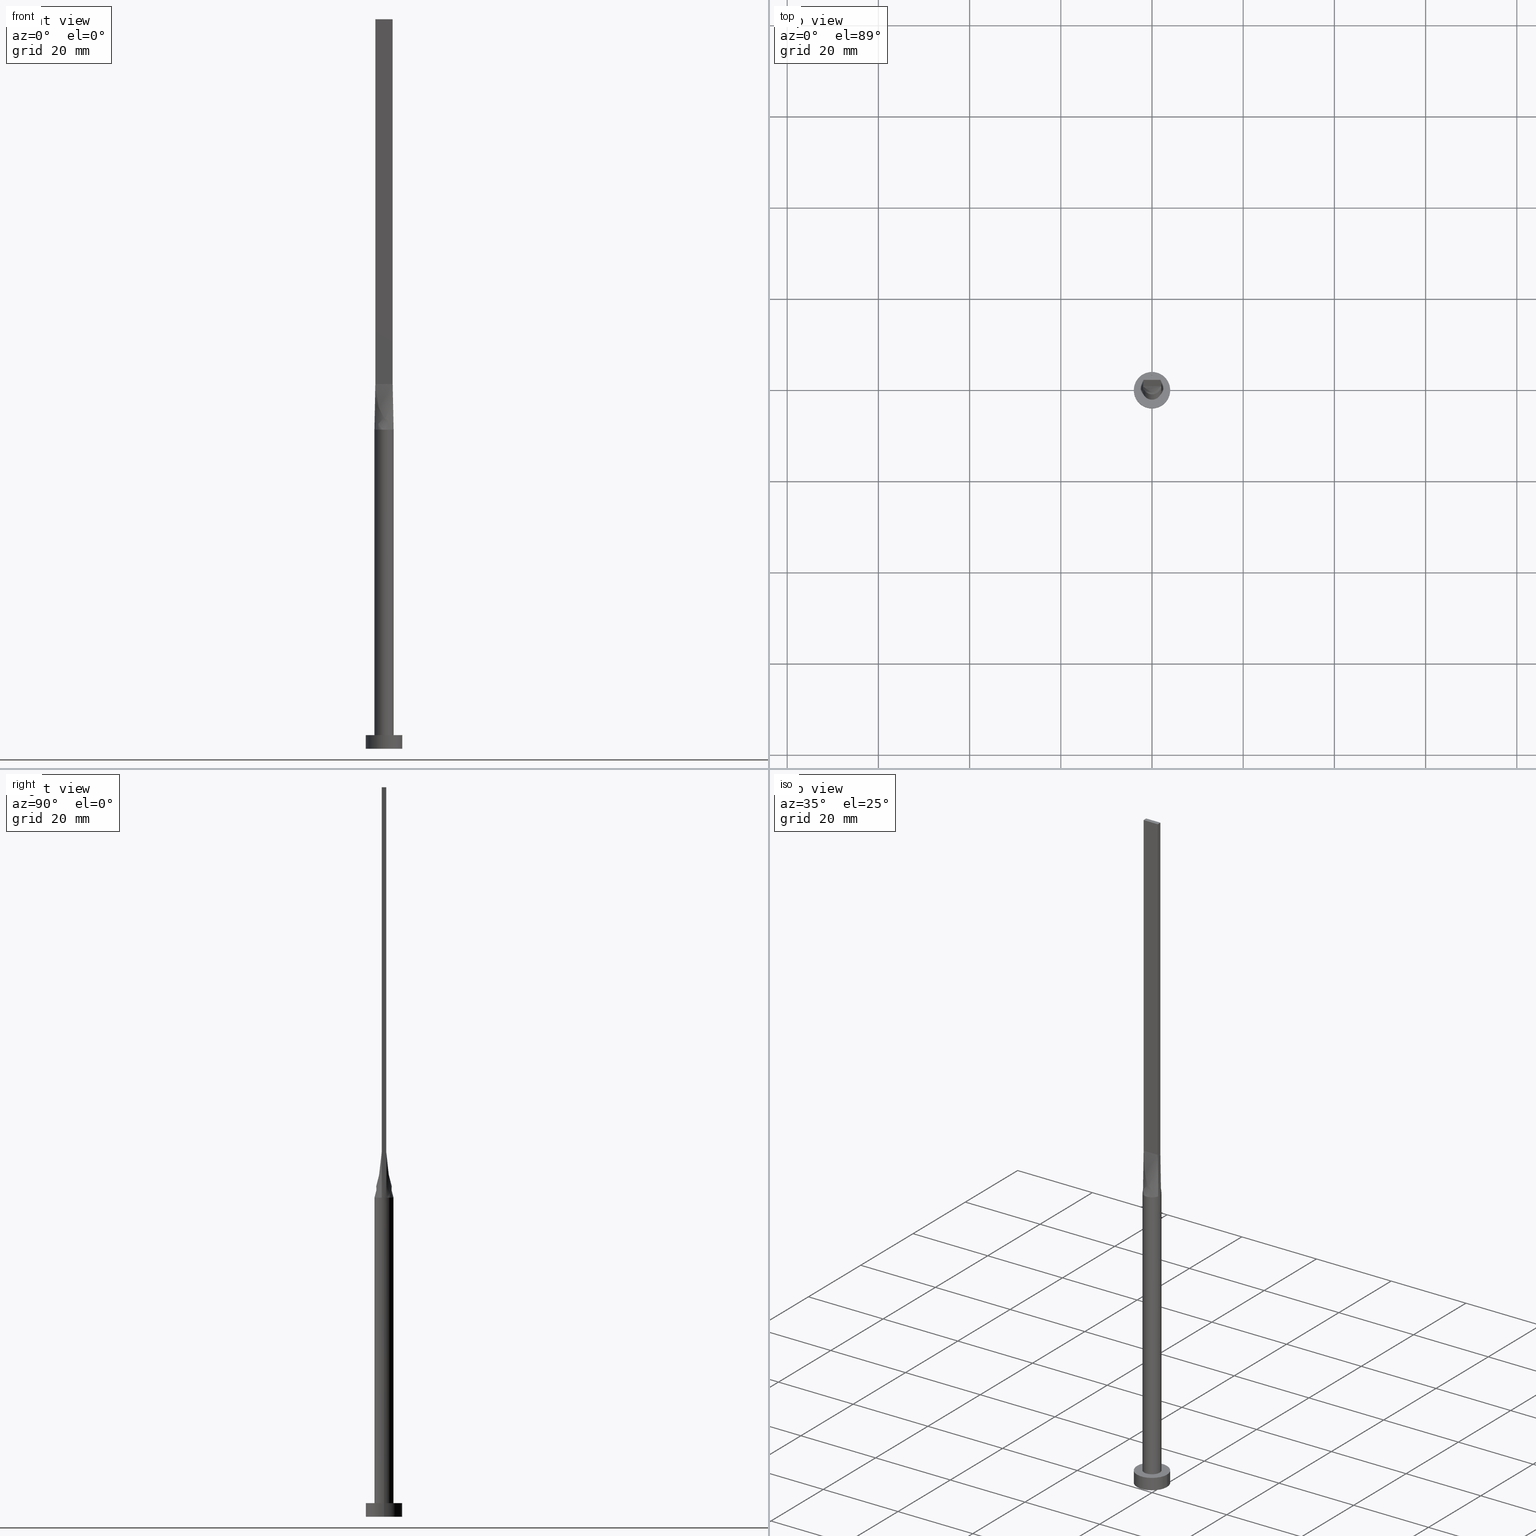
[diagram: canonical four-view strip — front | top / right | iso, engineering-drawing reading convention]
A machine part, canonical four-view strip (front | top / right | iso — engineering-drawing reading convention). The complete STEP part file that produces these views, byte-faithful:
ISO-10303-21;
HEADER;
FILE_DESCRIPTION (( 'STEP AP203' ),
    '1' );
FILE_NAME ('98dd.STEP',
    '2023-02-13T11:25:01',
    ( '' ),
    ( '' ),
    'SwSTEP 2.0',
    'SolidWorks 2019',
    '' );
FILE_SCHEMA (( 'CONFIG_CONTROL_DESIGN' ));
ENDSEC;

DATA;
#1 = CARTESIAN_POINT ( 'NONE',  ( 1.899999999999999023, -0.4999999999999997780, 160.0000000000000000 ) ) ;
#2 = EDGE_LOOP ( 'NONE', ( #580, #82, #55, #319, #169, #505 ) ) ;
#3 = SHAPE_DEFINITION_REPRESENTATION ( #445, #129 ) ;
#4 = CC_DESIGN_PERSON_AND_ORGANIZATION_ASSIGNMENT ( #349, #407, ( #8 ) ) ;
#5 = LINE ( 'NONE', #10, #37 ) ;
#6 = ORIENTED_EDGE ( 'NONE', *, *, #476, .T. ) ;
#7 = CALENDAR_DATE ( 2023, 13, 2 ) ;
#8 = SECURITY_CLASSIFICATION ( '', '', #535 ) ;
#9 = ORGANIZATION ( 'NEUR�EN�', 'NEUR�EN�', '' ) ;
#10 = CARTESIAN_POINT ( 'NONE',  ( 1.899999999999999023, -0.4999999999999997780, 160.0000000000000000 ) ) ;
#11 = CARTESIAN_POINT ( 'NONE',  ( -1.899999999999999911, -0.4999999999999995559, 80.00000000000000000 ) ) ;
#12 = APPROVAL_ROLE ( '' ) ;
#13 = CARTESIAN_POINT ( 'NONE',  ( 1.583604922800829984, -1.399063468093436846, 69.99999999999998579 ) ) ;
#14 = CYLINDRICAL_SURFACE ( 'NONE', #33, 2.100000000000000089 ) ;
#15 = DIRECTION ( 'NONE',  ( -0.000000000000000000, -0.000000000000000000, -1.000000000000000000 ) ) ;
#16 = CARTESIAN_POINT ( 'NONE',  ( -1.899999999999999467, 0.3333333333333335369, 79.99999999999998579 ) ) ;
#17 = ADVANCED_FACE ( 'NONE', ( #548 ), #558, .F. ) ;
#18 = DIRECTION ( 'NONE',  ( 0.000000000000000000, 0.000000000000000000, 1.000000000000000000 ) ) ;
#19 = DIRECTION ( 'NONE',  ( -0.000000000000000000, -0.000000000000000000, -1.000000000000000000 ) ) ;
#20 = PLANE ( 'NONE',  #113 ) ;
#21 = DIRECTION ( 'NONE',  ( 0.000000000000000000, 0.000000000000000000, 1.000000000000000000 ) ) ;
#22 = CARTESIAN_POINT ( 'NONE',  ( -2.031019593402089818, 0.5344793603115657321, 70.00000000000000000 ) ) ;
#23 = ORIENTED_EDGE ( 'NONE', *, *, #364, .F. ) ;
#24 = LINE ( 'NONE', #469, #293 ) ;
#25 = VECTOR ( 'NONE', #262, 1000.000000000000000 ) ;
#26 = DIRECTION ( 'NONE',  ( 0.000000000000000000, -0.000000000000000000, -1.000000000000000000 ) ) ;
#27 = CARTESIAN_POINT ( 'NONE',  ( -0.5389299406762299016, 2.046272663899431965, 70.00000000000001421 ) ) ;
#28 = ORIENTED_EDGE ( 'NONE', *, *, #549, .F. ) ;
#29 = DIRECTION ( 'NONE',  ( 1.000000000000000000, -2.168404344971009361E-16, 0.000000000000000000 ) ) ;
#30 = ORIENTED_EDGE ( 'NONE', *, *, #350, .F. ) ;
#31 = CARTESIAN_POINT ( 'NONE',  ( -1.719043754744862484, -1.223020672007444798, 69.99999999999998579 ) ) ;
#32 = ADVANCED_FACE ( 'NONE', ( #413 ), #14, .T. ) ;
#33 = AXIS2_PLACEMENT_3D ( 'NONE', #176, #142, #419 ) ;
#34 = VERTEX_POINT ( 'NONE', #460 ) ;
#35 = DIRECTION ( 'NONE',  ( -1.000000000000000000, -0.000000000000000000, -0.000000000000000000 ) ) ;
#36 = VECTOR ( 'NONE', #579, 1000.000000000000114 ) ;
#37 = VECTOR ( 'NONE', #264, 1000.000000000000000 ) ;
#38 = CARTESIAN_POINT ( 'NONE',  ( 1.266666666666665941, 0.5000000000000002220, 79.99999999999998579 ) ) ;
#39 = CARTESIAN_POINT ( 'NONE',  ( 0.3166666666666676511, -0.4999999999999997780, 79.99999999999998579 ) ) ;
#40 = DIRECTION ( 'NONE',  ( 1.000000000000000000, 0.000000000000000000, 0.000000000000000000 ) ) ;
#41 = DIRECTION ( 'NONE',  ( 1.000000000000000000, 0.000000000000000000, 0.000000000000000000 ) ) ;
#42 = PERSON_AND_ORGANIZATION ( #83, #9 ) ;
#43 = CARTESIAN_POINT ( 'NONE',  ( 2.030996101999494652, 0.5344731476277209126, 70.00000000000000000 ) ) ;
#44 = COORDINATED_UNIVERSAL_TIME_OFFSET ( 1, 0, .AHEAD. ) ;
#45 = EDGE_LOOP ( 'NONE', ( #298, #288 ) ) ;
#46 = COORDINATED_UNIVERSAL_TIME_OFFSET ( 1, 0, .AHEAD. ) ;
#47 = DIRECTION ( 'NONE',  ( 0.000000000000000000, 0.000000000000000000, 1.000000000000000000 ) ) ;
#48 = COORDINATED_UNIVERSAL_TIME_OFFSET ( 1, 0, .AHEAD. ) ;
#49 = DIRECTION ( 'NONE',  ( -0.000000000000000000, -0.000000000000000000, -1.000000000000000000 ) ) ;
#50 = VECTOR ( 'NONE', #444, 1000.000000000000000 ) ;
#51 = VERTEX_POINT ( 'NONE', #11 ) ;
#52 = LOCAL_TIME ( 12, 25, 1.000000000000000000, #44 ) ;
#53 = DIRECTION ( 'NONE',  ( 0.000000000000000000, 0.000000000000000000, 1.000000000000000000 ) ) ;
#54 = CARTESIAN_POINT ( 'NONE',  ( 1.108333333333334059, -0.4999999999999997780, 80.00000000000000000 ) ) ;
#55 = ORIENTED_EDGE ( 'NONE', *, *, #74, .T. ) ;
#56 = EDGE_CURVE ( 'NONE', #51, #80, #415, .T. ) ;
#57 = LINE ( 'NONE', #456, #227 ) ;
#58 = DIRECTION ( 'NONE',  ( -0.01308445504626048160, -0.003443277643752735376, -0.9999084662483913588 ) ) ;
#59 = ADVANCED_FACE ( 'NONE', ( #226 ), #143, .T. ) ;
#60 = DIRECTION ( 'NONE',  ( 6.505213034913026604E-16, 1.000000000000000000, 0.000000000000000000 ) ) ;
#61 = AXIS2_PLACEMENT_3D ( 'NONE', #158, #225, #394 ) ;
#62 = FACE_OUTER_BOUND ( 'NONE', #93, .T. ) ;
#63 = ORIENTED_EDGE ( 'NONE', *, *, #338, .T. ) ;
#64 = CARTESIAN_POINT ( 'NONE',  ( -1.021961681204346384, 1.852908961101259022, 70.00000000000001421 ) ) ;
#65 = CARTESIAN_POINT ( 'NONE',  ( -1.583604922800831760, -1.399063468093435958, 70.00000000000001421 ) ) ;
#66 = DIRECTION ( 'NONE',  ( 2.168404344971009361E-16, 1.000000000000000000, 0.000000000000000000 ) ) ;
#67 = ORIENTED_EDGE ( 'NONE', *, *, #56, .F. ) ;
#68 = DIRECTION ( 'NONE',  ( -1.000000000000000000, 5.706327223607918787E-17, 0.000000000000000000 ) ) ;
#69 = CARTESIAN_POINT ( 'NONE',  ( -1.719043754744861596, 1.223020672007445242, 70.00000000000000000 ) ) ;
#70 = CARTESIAN_POINT ( 'NONE',  ( -1.899999999999999689, 0.5000000000000002220, 80.00000000000000000 ) ) ;
#71 = ORIENTED_EDGE ( 'NONE', *, *, #383, .F. ) ;
#72 = DIRECTION ( 'NONE',  ( 5.706327223607918787E-17, 1.000000000000000000, -0.000000000000000000 ) ) ;
#73 = DIRECTION ( 'NONE',  ( 0.000000000000000000, 0.000000000000000000, 1.000000000000000000 ) ) ;
#74 = EDGE_CURVE ( 'NONE', #34, #534, #547, .T. ) ;
#75 = CARTESIAN_POINT ( 'NONE',  ( -1.920830191244604412, -0.8725264301372614995, 69.99999999999998579 ) ) ;
#76 = DIRECTION ( 'NONE',  ( 1.000000000000000000, 0.000000000000000000, 0.000000000000000000 ) ) ;
#77 = CARTESIAN_POINT ( 'NONE',  ( -0.7916666666666670737, 0.5000000000000002220, 79.99999999999998579 ) ) ;
#78 = VECTOR ( 'NONE', #49, 1000.000000000000000 ) ;
#79 = CARTESIAN_POINT ( 'NONE',  ( 1.741666666666666030, -0.4999999999999997780, 80.00000000000000000 ) ) ;
#80 = VERTEX_POINT ( 'NONE', #372 ) ;
#81 = CARTESIAN_POINT ( 'NONE',  ( -2.076193315816325491, -0.3621561357411375859, 70.00000000000000000 ) ) ;
#82 = ORIENTED_EDGE ( 'NONE', *, *, #223, .T. ) ;
#83 = PERSON ( 'NEUR�EN�', 'NEUR�EN�', 'NEUR�EN�', ('NEUR�EN�'), ('NEUR�EN�'), ('NEUR�EN�') ) ;
#84 = CARTESIAN_POINT ( 'NONE',  ( -2.030856528251557602, 0.5344359284872521876, 70.00000000000000000 ) ) ;
#85 = EDGE_CURVE ( 'NONE', #450, #351, #277, .T. ) ;
#86 = PERSON_AND_ORGANIZATION ( #83, #9 ) ;
#87 = CARTESIAN_POINT ( 'NONE',  ( 4.000000000000000000, 4.898587196589412829E-16, 3.000000000000000000 ) ) ;
#88 = ORIENTED_EDGE ( 'NONE', *, *, #223, .F. ) ;
#89 = CARTESIAN_POINT ( 'NONE',  ( 0.000000000000000000, 0.000000000000000000, 70.00000000000000000 ) ) ;
#90 = VERTEX_POINT ( 'NONE', #231 ) ;
#91 = APPROVAL_STATUS ( 'not_yet_approved' ) ;
#92 = CARTESIAN_POINT ( 'NONE',  ( 1.987786580065029174, 0.6981017315960605929, 70.00000000000000000 ) ) ;
#93 = EDGE_LOOP ( 'NONE', ( #491, #23, #294, #322 ) ) ;
#94 = APPROVAL_PERSON_ORGANIZATION ( #257, #107, #448 ) ;
#95 = DIRECTION ( 'NONE',  ( 0.000000000000000000, 0.000000000000000000, 1.000000000000000000 ) ) ;
#96 = CARTESIAN_POINT ( 'NONE',  ( 0.7916666666666676289, -0.4999999999999997780, 79.99999999999998579 ) ) ;
#97 = EDGE_LOOP ( 'NONE', ( #127, #432 ) ) ;
#98 = CARTESIAN_POINT ( 'NONE',  ( -0.5389299406762299016, 2.046272663899431965, 70.00000000000001421 ) ) ;
#99 = DIRECTION ( 'NONE',  ( -1.000000000000000000, 0.000000000000000000, 0.000000000000000000 ) ) ;
#100 = DIRECTION ( 'NONE',  ( -0.000000000000000000, -0.000000000000000000, -1.000000000000000000 ) ) ;
#101 = ORIENTED_EDGE ( 'NONE', *, *, #338, .F. ) ;
#102 = CIRCLE ( 'NONE', #376, 2.100000000000000089 ) ;
#103 = PRODUCT_DEFINITION_FORMATION_WITH_SPECIFIED_SOURCE ( 'LIBOVOLN�', '', #523, .NOT_KNOWN. ) ;
#104 = CARTESIAN_POINT ( 'NONE',  ( -4.000000000000000000, 0.000000000000000000, 3.000000000000000000 ) ) ;
#105 = ADVANCED_FACE ( 'NONE', ( #145 ), #20, .T. ) ;
#106 = DIRECTION ( 'NONE',  ( 1.000000000000000000, -5.706327223607918787E-17, 0.000000000000000000 ) ) ;
#107 = APPROVAL ( #91, 'NEUR�EN�' ) ;
#108 = DIRECTION ( 'NONE',  ( -6.505213034913026604E-16, -1.000000000000000000, 0.000000000000000000 ) ) ;
#109 = DIRECTION ( 'NONE',  ( -0.01308445504626046078, -0.003443277643752800429, 0.9999084662483913588 ) ) ;
#110 = CARTESIAN_POINT ( 'NONE',  ( -1.108333333333333615, 0.5000000000000002220, 79.99999999999998579 ) ) ;
#111 = VERTEX_POINT ( 'NONE', #266 ) ;
#112 = DIRECTION ( 'NONE',  ( -2.168404344971008868E-16, 1.000000000000000000, -0.000000000000000000 ) ) ;
#113 = AXIS2_PLACEMENT_3D ( 'NONE', #503, #330, #184 ) ;
#114 = CYLINDRICAL_SURFACE ( 'NONE', #180, 4.000000000000000000 ) ;
#115 = ORIENTED_EDGE ( 'NONE', *, *, #383, .T. ) ;
#116 = ADVANCED_FACE ( 'NONE', ( #545 ), #490, .T. ) ;
#117 = VECTOR ( 'NONE', #35, 1000.000000000000000 ) ;
#118 = FACE_OUTER_BOUND ( 'NONE', #138, .T. ) ;
#119 = CARTESIAN_POINT ( 'NONE',  ( 1.899999999999999689, 0.5000000000000002220, 80.00000000000000000 ) ) ;
#120 = VERTEX_POINT ( 'NONE', #388 ) ;
#121 = FACE_BOUND ( 'NONE', #45, .T. ) ;
#122 = CARTESIAN_POINT ( 'NONE',  ( 0.000000000000000000, 0.000000000000000000, 3.000000000000000000 ) ) ;
#123 = DIRECTION ( 'NONE',  ( -2.168404344971009361E-16, -1.000000000000000000, 0.000000000000000000 ) ) ;
#124 = APPLICATION_PROTOCOL_DEFINITION ( 'international standard', 'config_control_design', 1994, #507 ) ;
#125 = CC_DESIGN_APPROVAL ( #107, ( #204 ) ) ;
#126 = CARTESIAN_POINT ( 'NONE',  ( 1.235326090059013504, -1.714395692508636548, 69.99999999999998579 ) ) ;
#127 = ORIENTED_EDGE ( 'NONE', *, *, #390, .F. ) ;
#128 = CC_DESIGN_DATE_AND_TIME_ASSIGNMENT ( #500, #215, ( #204 ) ) ;
#129 = ADVANCED_BREP_SHAPE_REPRESENTATION ( '98dd', ( #229, #302 ), #241 ) ;
#130 = VERTEX_POINT ( 'NONE', #22 ) ;
#131 = PERSON_AND_ORGANIZATION_ROLE ( 'creator' ) ;
#132 = PERSON_AND_ORGANIZATION ( #83, #9 ) ;
#133 = EDGE_LOOP ( 'NONE', ( #555, #28, #370, #6 ) ) ;
#134 = CALENDAR_DATE ( 2023, 13, 2 ) ;
#135 = DIRECTION ( 'NONE',  ( 1.000000000000000000, 4.440892098500626951E-15, 0.000000000000000000 ) ) ;
#136 = DIRECTION ( 'NONE',  ( -1.000000000000000000, 6.505213034913026604E-16, 0.000000000000000000 ) ) ;
#137 = CARTESIAN_POINT ( 'NONE',  ( -1.899999999999999689, 0.5000000000000002220, 80.00000000000000000 ) ) ;
#138 = EDGE_LOOP ( 'NONE', ( #447, #71, #63, #410 ) ) ;
#139 = CARTESIAN_POINT ( 'NONE',  ( -0.3166666666666652641, -0.4999999999999997780, 79.99999999999998579 ) ) ;
#140 = ORIENTED_EDGE ( 'NONE', *, *, #364, .T. ) ;
#141 = LOCAL_TIME ( 12, 25, 1.000000000000000000, #46 ) ;
#142 = DIRECTION ( 'NONE',  ( -0.000000000000000000, -0.000000000000000000, -1.000000000000000000 ) ) ;
#143 = CYLINDRICAL_SURFACE ( 'NONE', #267, 4.000000000000000000 ) ;
#144 = CARTESIAN_POINT ( 'NONE',  ( -1.987786580065029174, 0.6981017315960602598, 70.00000000000000000 ) ) ;
#145 = FACE_OUTER_BOUND ( 'NONE', #509, .T. ) ;
#146 = LOCAL_TIME ( 12, 25, 1.000000000000000000, #48 ) ;
#147 = CARTESIAN_POINT ( 'NONE',  ( -1.235326090059014836, 1.714395692508636326, 70.00000000000001421 ) ) ;
#148 = CARTESIAN_POINT ( 'NONE',  ( 0.6333333333333323045, 0.5000000000000002220, 79.99999999999998579 ) ) ;
#149 = ADVANCED_FACE ( 'NONE', ( #118 ), #114, .T. ) ;
#150 = ORIENTED_EDGE ( 'NONE', *, *, #508, .F. ) ;
#151 = CARTESIAN_POINT ( 'NONE',  ( 1.719043754744862040, 1.223020672007445464, 69.99999999999998579 ) ) ;
#152 = CC_DESIGN_SECURITY_CLASSIFICATION ( #8, ( #103 ) ) ;
#153 = CARTESIAN_POINT ( 'NONE',  ( -1.920830191244604412, 0.8725264301372623876, 70.00000000000000000 ) ) ;
#154 = VERTEX_POINT ( 'NONE', #569 ) ;
#155 = CARTESIAN_POINT ( 'NONE',  ( -1.899999999999999911, -0.4999999999999995559, 160.0000000000000000 ) ) ;
#156 = CARTESIAN_POINT ( 'NONE',  ( -1.266666666666665719, -0.4999999999999995559, 79.99999999999998579 ) ) ;
#157 = CARTESIAN_POINT ( 'NONE',  ( 0.000000000000000000, 0.000000000000000000, 0.000000000000000000 ) ) ;
#158 = CARTESIAN_POINT ( 'NONE',  ( 0.000000000000000000, 0.000000000000000000, 70.00000000000000000 ) ) ;
#159 = AXIS2_PLACEMENT_3D ( 'NONE', #122, #73, #245 ) ;
#160 = VECTOR ( 'NONE', #15, 1000.000000000000000 ) ;
#161 = CARTESIAN_POINT ( 'NONE',  ( -1.899999999999999689, -0.3333333333333329263, 79.99999999999998579 ) ) ;
#162 = ORIENTED_EDGE ( 'NONE', *, *, #493, .T. ) ;
#163 = PERSON_AND_ORGANIZATION_ROLE ( 'design_supplier' ) ;
#164 = DIRECTION ( 'NONE',  ( -0.000000000000000000, -0.000000000000000000, -1.000000000000000000 ) ) ;
#165 = ORIENTED_EDGE ( 'NONE', *, *, #258, .F. ) ;
#166 = PERSON_AND_ORGANIZATION ( #83, #9 ) ;
#167 = DIRECTION ( 'NONE',  ( -1.000000000000000000, 0.000000000000000000, 0.000000000000000000 ) ) ;
#168 = EDGE_CURVE ( 'NONE', #51, #551, #187, .T. ) ;
#169 = ORIENTED_EDGE ( 'NONE', *, *, #296, .F. ) ;
#170 = PERSON_AND_ORGANIZATION_ROLE ( 'creator' ) ;
#171 = CIRCLE ( 'NONE', #356, 4.000000000000000000 ) ;
#172 = APPROVAL_PERSON_ORGANIZATION ( #86, #539, #213 ) ;
#173 = PERSON_AND_ORGANIZATION ( #83, #9 ) ;
#174 = DIRECTION ( 'NONE',  ( 1.000000000000000000, 0.000000000000000000, 0.000000000000000000 ) ) ;
#175 = CARTESIAN_POINT ( 'NONE',  ( 0.6333333333333344140, -0.4999999999999997780, 79.99999999999998579 ) ) ;
#176 = CARTESIAN_POINT ( 'NONE',  ( 0.000000000000000000, 0.000000000000000000, 70.00000000000000000 ) ) ;
#177 = COORDINATED_UNIVERSAL_TIME_OFFSET ( 1, 0, .AHEAD. ) ;
#178 = LINE ( 'NONE', #137, #230 ) ;
#179 = ORIENTED_EDGE ( 'NONE', *, *, #463, .T. ) ;
#180 = AXIS2_PLACEMENT_3D ( 'NONE', #202, #247, #295 ) ;
#181 = ORIENTED_EDGE ( 'NONE', *, *, #168, .F. ) ;
#182 = ADVANCED_FACE ( 'NONE', ( #334 ), #474, .F. ) ;
#183 = LINE ( 'NONE', #278, #117 ) ;
#184 = DIRECTION ( 'NONE',  ( 1.000000000000000000, 0.000000000000000000, -0.000000000000000000 ) ) ;
#185 = ADVANCED_FACE ( 'NONE', ( #571 ), #398, .T. ) ;
#186 = CARTESIAN_POINT ( 'NONE',  ( 0.000000000000000000, 0.000000000000000000, 3.000000000000000000 ) ) ;
#187 = LINE ( 'NONE', #291, #290 ) ;
#188 = CIRCLE ( 'NONE', #532, 2.100000000000000089 ) ;
#189 = CIRCLE ( 'NONE', #496, 2.100000000000000089 ) ;
#190 = ORIENTED_EDGE ( 'NONE', *, *, #446, .T. ) ;
#191 = CARTESIAN_POINT ( 'NONE',  ( -2.100000000000000089, 0.000000000000000000, 70.00000000000000000 ) ) ;
#192 = CARTESIAN_POINT ( 'NONE',  ( -0.6333333333333338588, 0.5000000000000002220, 79.99999999999998579 ) ) ;
#193 = ORIENTED_EDGE ( 'NONE', *, *, #508, .T. ) ;
#194 = CARTESIAN_POINT ( 'NONE',  ( 1.108333333333332504, 0.5000000000000002220, 79.99999999999998579 ) ) ;
#195 = MECHANICAL_CONTEXT ( 'NONE', #507, 'mechanical' ) ;
#196 = AXIS2_PLACEMENT_3D ( 'NONE', #506, #21, #274 ) ;
#197 = CARTESIAN_POINT ( 'NONE',  ( 1.741666666666666252, 0.5000000000000002220, 80.00000000000000000 ) ) ;
#198 = CARTESIAN_POINT ( 'NONE',  ( 1.899999999999999467, 0.3333333333333337034, 79.99999999999998579 ) ) ;
#199 = PRODUCT_RELATED_PRODUCT_CATEGORY ( 'detail', '', ( #523 ) ) ;
#200 = AXIS2_PLACEMENT_3D ( 'NONE', #282, #560, #26 ) ;
#201 = VECTOR ( 'NONE', #553, 1000.000000000000114 ) ;
#202 = CARTESIAN_POINT ( 'NONE',  ( 0.000000000000000000, 0.000000000000000000, 3.000000000000000000 ) ) ;
#203 = DIRECTION ( 'NONE',  ( 0.000000000000000000, 0.000000000000000000, 1.000000000000000000 ) ) ;
#204 = PRODUCT_DEFINITION ( 'NEZN�M�', '', #103, #362 ) ;
#205 = DIRECTION ( 'NONE',  ( 0.000000000000000000, 0.000000000000000000, 1.000000000000000000 ) ) ;
#206 = CARTESIAN_POINT ( 'NONE',  ( 1.899999999999999689, -0.1666666666666661856, 79.99999999999998579 ) ) ;
#207 = LINE ( 'NONE', #573, #78 ) ;
#208 = VERTEX_POINT ( 'NONE', #452 ) ;
#209 = DIRECTION ( 'NONE',  ( 1.000000000000000000, 0.000000000000000000, 0.000000000000000000 ) ) ;
#210 = EDGE_CURVE ( 'NONE', #304, #457, #260, .T. ) ;
#211 = B_SPLINE_SURFACE_WITH_KNOTS ( 'NONE', 3, 1, ( 
 ( #84, #252 ),
 ( #576, #16 ),
 ( #303, #341 ),
 ( #363, #488 ),
 ( #81, #161 ),
 ( #347, #536 ) ),
 .UNSPECIFIED., .F., .F., .F.,
 ( 4, 2, 4 ),
 ( 2, 2 ),
 ( 0.000000000000000000, 0.5000000000000000000, 1.000000000000000000 ),
 ( 0.000000000000000000, 1.000000000000000000 ),
 .UNSPECIFIED. ) ;
#212 = ORIENTED_EDGE ( 'NONE', *, *, #367, .F. ) ;
#213 = APPROVAL_ROLE ( '' ) ;
#214 = ORIENTED_EDGE ( 'NONE', *, *, #210, .T. ) ;
#215 = DATE_TIME_ROLE ( 'creation_date' ) ;
#216 = CARTESIAN_POINT ( 'NONE',  ( 0.000000000000000000, 0.000000000000000000, 0.000000000000000000 ) ) ;
#217 = APPROVAL_DATE_TIME ( #451, #254 ) ;
#218 = CARTESIAN_POINT ( 'NONE',  ( 1.899999999999999023, -0.4999999999999997780, 80.00000000000000000 ) ) ;
#219 = AXIS2_PLACEMENT_3D ( 'NONE', #543, #136, #108 ) ;
#220 = CARTESIAN_POINT ( 'NONE',  ( 0.000000000000000000, 0.000000000000000000, 3.000000000000000000 ) ) ;
#221 = CALENDAR_DATE ( 2023, 13, 2 ) ;
#222 = CARTESIAN_POINT ( 'NONE',  ( -0.2698109971861053502, -2.100000000000000089, 70.00000000000004263 ) ) ;
#223 = EDGE_CURVE ( 'NONE', #304, #34, #207, .T. ) ;
#224 = ORIENTED_EDGE ( 'NONE', *, *, #529, .T. ) ;
#225 = DIRECTION ( 'NONE',  ( 0.000000000000000000, 0.000000000000000000, 1.000000000000000000 ) ) ;
#226 = FACE_OUTER_BOUND ( 'NONE', #435, .T. ) ;
#227 = VECTOR ( 'NONE', #544, 1000.000000000000000 ) ;
#228 = CARTESIAN_POINT ( 'NONE',  ( 1.583604922800830428, 1.399063468093436624, 70.00000000000000000 ) ) ;
#229 = MANIFOLD_SOLID_BREP ( 'P�idat vysunut�m5', #373 ) ;
#230 = VECTOR ( 'NONE', #123, 1000.000000000000000 ) ;
#231 = CARTESIAN_POINT ( 'NONE',  ( -4.000000000000000000, 0.000000000000000000, 0.000000000000000000 ) ) ;
#232 = VECTOR ( 'NONE', #315, 1000.000000000000000 ) ;
#233 = CARTESIAN_POINT ( 'NONE',  ( -1.899999999999999911, -0.4999999999999995559, 160.0000000000000000 ) ) ;
#234 = ORIENTED_EDGE ( 'NONE', *, *, #501, .T. ) ;
#235 = FACE_OUTER_BOUND ( 'NONE', #306, .T. ) ;
#236 = CARTESIAN_POINT ( 'NONE',  ( 0.5389299406762297906, 2.046272663899431077, 70.00000000000000000 ) ) ;
#237 = CARTESIAN_POINT ( 'NONE',  ( 1.920830191244603746, 0.8725264301372623876, 69.99999999999998579 ) ) ;
#238 = DIRECTION ( 'NONE',  ( 1.000000000000000000, 0.000000000000000000, 0.000000000000000000 ) ) ;
#239 = CARTESIAN_POINT ( 'NONE',  ( 1.719043754744862040, 1.223020672007445464, 69.99999999999998579 ) ) ;
#240 = CARTESIAN_POINT ( 'NONE',  ( -1.108333333333332282, -0.4999999999999995559, 79.99999999999998579 ) ) ;
#241 =( GEOMETRIC_REPRESENTATION_CONTEXT ( 3 ) GLOBAL_UNCERTAINTY_ASSIGNED_CONTEXT ( ( #328 ) ) GLOBAL_UNIT_ASSIGNED_CONTEXT ( ( #340, #528, #438 ) ) REPRESENTATION_CONTEXT ( 'NONE', 'WORKASPACE' ) );
#242 = LINE ( 'NONE', #375, #386 ) ;
#243 = CARTESIAN_POINT ( 'NONE',  ( 0.5389299406762297906, 2.046272663899431077, 70.00000000000000000 ) ) ;
#244 = DIRECTION ( 'NONE',  ( 1.000000000000000000, 0.000000000000000000, -0.000000000000000000 ) ) ;
#245 = DIRECTION ( 'NONE',  ( 1.000000000000000000, 0.000000000000000000, 0.000000000000000000 ) ) ;
#246 = CC_DESIGN_DATE_AND_TIME_ASSIGNMENT ( #411, #404, ( #8 ) ) ;
#247 = DIRECTION ( 'NONE',  ( -0.000000000000000000, -0.000000000000000000, -1.000000000000000000 ) ) ;
#248 = AXIS2_PLACEMENT_3D ( 'NONE', #518, #29, #66 ) ;
#249 = CARTESIAN_POINT ( 'NONE',  ( -1.719043754744861596, 1.223020672007445242, 70.00000000000000000 ) ) ;
#250 = EDGE_CURVE ( 'NONE', #309, #481, #359, .T. ) ;
#251 = CC_DESIGN_APPROVAL ( #539, ( #103 ) ) ;
#252 = CARTESIAN_POINT ( 'NONE',  ( -1.899999999999999689, 0.5000000000000002220, 80.00000000000000000 ) ) ;
#253 = CARTESIAN_POINT ( 'NONE',  ( 2.076193315816325047, 0.3621561357411385851, 70.00000000000000000 ) ) ;
#254 = APPROVAL ( #314, 'NEUR�EN�' ) ;
#255 = CARTESIAN_POINT ( 'NONE',  ( 0.5389299406762287914, -2.046272663899431965, 70.00000000000002842 ) ) ;
#256 = ORIENTED_EDGE ( 'NONE', *, *, #296, .T. ) ;
#257 = PERSON_AND_ORGANIZATION ( #83, #9 ) ;
#258 = EDGE_CURVE ( 'NONE', #481, #51, #57, .T. ) ;
#259 = CARTESIAN_POINT ( 'NONE',  ( -0.5389299406762309008, -2.046272663899432409, 70.00000000000004263 ) ) ;
#260 = CIRCLE ( 'NONE', #416, 2.100000000000000089 ) ;
#261 = CALENDAR_DATE ( 2023, 13, 2 ) ;
#262 = DIRECTION ( 'NONE',  ( 1.000000000000000000, -5.706327223607920020E-17, 0.000000000000000000 ) ) ;
#263 = APPROVAL_DATE_TIME ( #268, #107 ) ;
#264 = DIRECTION ( 'NONE',  ( -0.000000000000000000, -0.000000000000000000, -1.000000000000000000 ) ) ;
#265 = ORIENTED_EDGE ( 'NONE', *, *, #421, .T. ) ;
#266 = CARTESIAN_POINT ( 'NONE',  ( -1.899999999999999689, 0.5000000000000002220, 80.00000000000000000 ) ) ;
#267 = AXIS2_PLACEMENT_3D ( 'NONE', #220, #360, #99 ) ;
#268 = DATE_AND_TIME ( #134, #357 ) ;
#269 = CARTESIAN_POINT ( 'NONE',  ( 0.000000000000000000, 0.000000000000000000, 70.00000000000000000 ) ) ;
#270 = CARTESIAN_POINT ( 'NONE',  ( -0.1583333333333323267, -0.4999999999999997780, 80.00000000000000000 ) ) ;
#271 = ORIENTED_EDGE ( 'NONE', *, *, #476, .F. ) ;
#272 = CARTESIAN_POINT ( 'NONE',  ( 1.899999999999999689, -0.3333333333333329263, 79.99999999999998579 ) ) ;
#273 = CARTESIAN_POINT ( 'NONE',  ( 0.000000000000000000, 0.000000000000000000, 70.00000000000000000 ) ) ;
#274 = DIRECTION ( 'NONE',  ( 1.000000000000000000, 0.000000000000000000, -0.000000000000000000 ) ) ;
#275 = DIRECTION ( 'NONE',  ( 1.000000000000000000, 0.000000000000000000, 0.000000000000000000 ) ) ;
#276 = CARTESIAN_POINT ( 'NONE',  ( -1.235326090059014836, 1.714395692508636326, 70.00000000000001421 ) ) ;
#277 = LINE ( 'NONE', #464, #557 ) ;
#278 = CARTESIAN_POINT ( 'NONE',  ( -1.899999999999999689, 0.5000000000000002220, 80.00000000000000000 ) ) ;
#279 = AXIS2_PLACEMENT_3D ( 'NONE', #433, #47, #310 ) ;
#280 = VERTEX_POINT ( 'NONE', #485 ) ;
#281 = AXIS2_PLACEMENT_3D ( 'NONE', #89, #164, #167 ) ;
#282 = CARTESIAN_POINT ( 'NONE',  ( 1.899999999999999689, 0.5000000000000002220, 160.0000000000000000 ) ) ;
#283 = CARTESIAN_POINT ( 'NONE',  ( -1.987786580065029840, -0.6981017315960599268, 70.00000000000002842 ) ) ;
#284 = LINE ( 'NONE', #371, #201 ) ;
#285 = EDGE_CURVE ( 'NONE', #111, #51, #178, .T. ) ;
#286 = LINE ( 'NONE', #554, #540 ) ;
#287 = CARTESIAN_POINT ( 'NONE',  ( 1.235326090059014614, 1.714395692508636770, 70.00000000000001421 ) ) ;
#288 = ORIENTED_EDGE ( 'NONE', *, *, #74, .F. ) ;
#289 = FACE_OUTER_BOUND ( 'NONE', #332, .T. ) ;
#290 = VECTOR ( 'NONE', #106, 1000.000000000000000 ) ;
#291 = CARTESIAN_POINT ( 'NONE',  ( -1.899999999999999911, -0.4999999999999995559, 80.00000000000000000 ) ) ;
#292 = VECTOR ( 'NONE', #109, 1000.000000000000114 ) ;
#293 = VECTOR ( 'NONE', #100, 1000.000000000000000 ) ;
#294 = ORIENTED_EDGE ( 'NONE', *, *, #403, .F. ) ;
#295 = DIRECTION ( 'NONE',  ( -1.000000000000000000, 0.000000000000000000, 0.000000000000000000 ) ) ;
#296 = EDGE_CURVE ( 'NONE', #130, #443, #311, .T. ) ;
#297 = CARTESIAN_POINT ( 'NONE',  ( -0.1583333333333339921, 0.5000000000000002220, 79.99999999999998579 ) ) ;
#298 = ORIENTED_EDGE ( 'NONE', *, *, #529, .F. ) ;
#299 = CARTESIAN_POINT ( 'NONE',  ( 2.030856528251557602, 0.5344359284872527427, 70.00000000000000000 ) ) ;
#300 = CARTESIAN_POINT ( 'NONE',  ( 1.987786580065029396, -0.6981017315960611480, 70.00000000000001421 ) ) ;
#301 = CIRCLE ( 'NONE', #159, 4.000000000000000000 ) ;
#302 = AXIS2_PLACEMENT_3D ( 'NONE', #157, #203, #76 ) ;
#303 = CARTESIAN_POINT ( 'NONE',  ( -2.100000000000000089, 0.1811271572287804221, 70.00000000000000000 ) ) ;
#304 = VERTEX_POINT ( 'NONE', #489 ) ;
#305 = CARTESIAN_POINT ( 'NONE',  ( -1.899999999999999689, 0.5000000000000002220, 160.0000000000000000 ) ) ;
#306 = EDGE_LOOP ( 'NONE', ( #520, #214, #486, #30, #150 ) ) ;
#307 = APPLICATION_PROTOCOL_DEFINITION ( 'international standard', 'config_control_design', 1994, #366 ) ;
#308 = CARTESIAN_POINT ( 'NONE',  ( -1.965428264125778535, 0.5172179642436262048, 75.00000000000001421 ) ) ;
#309 = VERTEX_POINT ( 'NONE', #414 ) ;
#310 = DIRECTION ( 'NONE',  ( 1.000000000000000000, 0.000000000000000000, 0.000000000000000000 ) ) ;
#311 = CIRCLE ( 'NONE', #61, 2.100000000000000089 ) ;
#312 = CC_DESIGN_PERSON_AND_ORGANIZATION_ASSIGNMENT ( #42, #163, ( #103 ) ) ;
#313 = ORIENTED_EDGE ( 'NONE', *, *, #430, .T. ) ;
#314 = APPROVAL_STATUS ( 'not_yet_approved' ) ;
#315 = DIRECTION ( 'NONE',  ( -0.000000000000000000, -0.000000000000000000, -1.000000000000000000 ) ) ;
#316 = ADVANCED_FACE ( 'NONE', ( #318 ), #211, .T. ) ;
#317 = PERSON_AND_ORGANIZATION ( #83, #9 ) ;
#318 = FACE_OUTER_BOUND ( 'NONE', #572, .T. ) ;
#319 = ORIENTED_EDGE ( 'NONE', *, *, #493, .F. ) ;
#320 = CARTESIAN_POINT ( 'NONE',  ( -2.100000000000000089, -1.080980291041873360E-16, 70.00000000000000000 ) ) ;
#321 = CARTESIAN_POINT ( 'NONE',  ( 0.2698109971861026857, -2.100000000000000977, 70.00000000000002842 ) ) ;
#322 = ORIENTED_EDGE ( 'NONE', *, *, #549, .T. ) ;
#323 = EDGE_CURVE ( 'NONE', #457, #130, #417, .T. ) ;
#324 = CARTESIAN_POINT ( 'NONE',  ( -0.2698109971861040179, 2.100000000000000089, 70.00000000000001421 ) ) ;
#325 = ORIENTED_EDGE ( 'NONE', *, *, #421, .F. ) ;
#326 = VERTEX_POINT ( 'NONE', #329 ) ;
#327 = CARTESIAN_POINT ( 'NONE',  ( 0.000000000000000000, 0.000000000000000000, 70.00000000000000000 ) ) ;
#328 = UNCERTAINTY_MEASURE_WITH_UNIT (LENGTH_MEASURE( 1.000000000000000082E-05 ), #340, 'distance_accuracy_value', 'NONE');
#329 = CARTESIAN_POINT ( 'NONE',  ( -4.000000000000000000, 0.000000000000000000, 3.000000000000000000 ) ) ;
#330 = DIRECTION ( 'NONE',  ( 0.000000000000000000, 0.000000000000000000, 1.000000000000000000 ) ) ;
#331 = CARTESIAN_POINT ( 'NONE',  ( -1.266666666666666829, 0.5000000000000002220, 79.99999999999998579 ) ) ;
#332 = EDGE_LOOP ( 'NONE', ( #115, #517 ) ) ;
#333 = CARTESIAN_POINT ( 'NONE',  ( 1.965428264125778535, 0.5172179642436265379, 75.00000000000001421 ) ) ;
#334 = FACE_OUTER_BOUND ( 'NONE', #467, .T. ) ;
#335 = CARTESIAN_POINT ( 'NONE',  ( 0.2698109971861041290, 2.100000000000000089, 70.00000000000000000 ) ) ;
#336 = AXIS2_PLACEMENT_3D ( 'NONE', #566, #343, #40 ) ;
#337 = ORIENTED_EDGE ( 'NONE', *, *, #570, .F. ) ;
#338 = EDGE_CURVE ( 'NONE', #326, #90, #429, .T. ) ;
#339 = CARTESIAN_POINT ( 'NONE',  ( -1.583333333333332815, -0.4999999999999995559, 80.00000000000000000 ) ) ;
#340 =( LENGTH_UNIT ( ) NAMED_UNIT ( * ) SI_UNIT ( .MILLI., .METRE. ) );
#341 = CARTESIAN_POINT ( 'NONE',  ( -1.899999999999999467, 0.1666666666666668795, 79.99999999999998579 ) ) ;
#342 = ORIENTED_EDGE ( 'NONE', *, *, #403, .T. ) ;
#343 = DIRECTION ( 'NONE',  ( 0.000000000000000000, 0.000000000000000000, 1.000000000000000000 ) ) ;
#344 = DIRECTION ( 'NONE',  ( -2.168404344971009361E-16, -1.000000000000000000, 0.000000000000000000 ) ) ;
#345 = ORIENTED_EDGE ( 'NONE', *, *, #250, .T. ) ;
#346 = DIRECTION ( 'NONE',  ( 0.000000000000000000, 0.000000000000000000, 1.000000000000000000 ) ) ;
#347 = CARTESIAN_POINT ( 'NONE',  ( -2.030856528251558046, -0.5344359284872516325, 70.00000000000000000 ) ) ;
#348 = ORIENTED_EDGE ( 'NONE', *, *, #323, .T. ) ;
#349 = PERSON_AND_ORGANIZATION ( #83, #9 ) ;
#350 = EDGE_CURVE ( 'NONE', #551, #120, #242, .T. ) ;
#351 = VERTEX_POINT ( 'NONE', #418 ) ;
#352 = LINE ( 'NONE', #87, #232 ) ;
#353 = ADVANCED_FACE ( 'NONE', ( #62 ), #462, .F. ) ;
#354 = LINE ( 'NONE', #405, #50 ) ;
#355 = EDGE_CURVE ( 'NONE', #457, #120, #515, .T. ) ;
#356 = AXIS2_PLACEMENT_3D ( 'NONE', #216, #53, #174 ) ;
#357 = LOCAL_TIME ( 12, 25, 1.000000000000000000, #581 ) ;
#358 = PERSON_AND_ORGANIZATION_ROLE ( 'design_owner' ) ;
#359 = LINE ( 'NONE', #305, #494 ) ;
#360 = DIRECTION ( 'NONE',  ( -0.000000000000000000, -0.000000000000000000, -1.000000000000000000 ) ) ;
#361 = LINE ( 'NONE', #308, #36 ) ;
#362 = DESIGN_CONTEXT ( 'detailed design', #366, 'design' ) ;
#363 = CARTESIAN_POINT ( 'NONE',  ( -2.100000000000000977, -0.1811271572287798393, 70.00000000000000000 ) ) ;
#364 = EDGE_CURVE ( 'NONE', #309, #111, #286, .T. ) ;
#365 = ORIENTED_EDGE ( 'NONE', *, *, #468, .T. ) ;
#366 = APPLICATION_CONTEXT ( 'configuration controlled 3d designs of mechanical parts and assemblies' ) ;
#367 = EDGE_CURVE ( 'NONE', #120, #111, #183, .T. ) ;
#368 = VECTOR ( 'NONE', #425, 1000.000000000000000 ) ;
#369 = DIRECTION ( 'NONE',  ( 1.000000000000000000, 0.000000000000000000, 0.000000000000000000 ) ) ;
#370 = ORIENTED_EDGE ( 'NONE', *, *, #85, .F. ) ;
#371 = CARTESIAN_POINT ( 'NONE',  ( 1.965428264125778091, -0.5172179642436263158, 75.00000000000001421 ) ) ;
#372 = CARTESIAN_POINT ( 'NONE',  ( -2.031004407172260162, -0.5344754071304557153, 70.00000000000000000 ) ) ;
#373 = CLOSED_SHELL ( 'NONE', ( #466, #59, #149, #575, #17, #32, #185, #552, #316, #116, #353, #182, #567, #478, #105 ) ) ;
#374 = LINE ( 'NONE', #191, #160 ) ;
#375 = CARTESIAN_POINT ( 'NONE',  ( 1.899999999999999689, 0.5000000000000002220, 80.00000000000000000 ) ) ;
#376 = AXIS2_PLACEMENT_3D ( 'NONE', #542, #95, #135 ) ;
#377 = CARTESIAN_POINT ( 'NONE',  ( -1.741666666666666474, -0.4999999999999995559, 80.00000000000000000 ) ) ;
#378 = ORIENTED_EDGE ( 'NONE', *, *, #168, .T. ) ;
#379 = CARTESIAN_POINT ( 'NONE',  ( 1.899999999999999911, -0.4999999999999997780, 80.00000000000000000 ) ) ;
#380 = CARTESIAN_POINT ( 'NONE',  ( 1.235326090059014614, 1.714395692508636770, 70.00000000000001421 ) ) ;
#381 = CARTESIAN_POINT ( 'NONE',  ( -1.741666666666666696, 0.5000000000000002220, 79.99999999999998579 ) ) ;
#382 = CARTESIAN_POINT ( 'NONE',  ( 1.583333333333332815, 0.5000000000000002220, 80.00000000000000000 ) ) ;
#383 = EDGE_CURVE ( 'NONE', #326, #154, #301, .T. ) ;
#384 = ORIENTED_EDGE ( 'NONE', *, *, #285, .T. ) ;
#385 = CARTESIAN_POINT ( 'NONE',  ( -1.987786580065029174, 0.6981017315960602598, 70.00000000000000000 ) ) ;
#386 = VECTOR ( 'NONE', #112, 1000.000000000000000 ) ;
#387 = APPROVAL_PERSON_ORGANIZATION ( #132, #254, #12 ) ;
#388 = CARTESIAN_POINT ( 'NONE',  ( 1.899999999999999689, 0.5000000000000002220, 80.00000000000000000 ) ) ;
#389 = B_SPLINE_SURFACE_WITH_KNOTS ( 'NONE', 3, 1, ( 
 ( #422, #379 ),
 ( #562, #272 ),
 ( #458, #206 ),
 ( #475, #482 ),
 ( #253, #198 ),
 ( #299, #436 ) ),
 .UNSPECIFIED., .F., .F., .F.,
 ( 4, 2, 4 ),
 ( 2, 2 ),
 ( 0.000000000000000000, 0.5000000000000000000, 1.000000000000000000 ),
 ( 0.000000000000000000, 1.000000000000000000 ),
 .UNSPECIFIED. ) ;
#390 = EDGE_CURVE ( 'NONE', #90, #280, #522, .T. ) ;
#391 = CARTESIAN_POINT ( 'NONE',  ( 1.266666666666667052, -0.4999999999999997780, 80.00000000000000000 ) ) ;
#392 = ORIENTED_EDGE ( 'NONE', *, *, #285, .F. ) ;
#393 = PLANE ( 'NONE',  #541 ) ;
#394 = DIRECTION ( 'NONE',  ( 1.000000000000000000, 0.000000000000000000, 0.000000000000000000 ) ) ;
#395 = ORIENTED_EDGE ( 'NONE', *, *, #501, .F. ) ;
#396 = CIRCLE ( 'NONE', #336, 4.000000000000000000 ) ;
#397 = FACE_OUTER_BOUND ( 'NONE', #2, .T. ) ;
#398 = B_SPLINE_SURFACE_WITH_KNOTS ( 'NONE', 3, 1, ( 
 ( #483, #434 ),
 ( #283, #377 ),
 ( #75, #339 ),
 ( #31, #156 ),
 ( #65, #240 ),
 ( #426, #439 ),
 ( #442, #546 ),
 ( #259, #139 ),
 ( #222, #270 ),
 ( #321, #533 ),
 ( #255, #39 ),
 ( #504, #175 ),
 ( #126, #96 ),
 ( #13, #54 ),
 ( #412, #391 ),
 ( #459, #409 ),
 ( #300, #79 ),
 ( #530, #218 ) ),
 .UNSPECIFIED., .F., .F., .F.,
 ( 4, 2, 2, 2, 2, 2, 2, 2, 4 ),
 ( 2, 2 ),
 ( 0.000000000000000000, 0.1250000000000000555, 0.2500000000000001665, 0.3750000000000002776, 0.5000000000000003331, 0.6250000000000002220, 0.7500000000000002220, 0.8750000000000001110, 1.000000000000000000 ),
 ( 0.000000000000000000, 1.000000000000000000 ),
 .UNSPECIFIED. ) ;
#399 = CC_DESIGN_PERSON_AND_ORGANIZATION_ASSIGNMENT ( #173, #131, ( #103 ) ) ;
#400 = ORIENTED_EDGE ( 'NONE', *, *, #85, .T. ) ;
#401 = DATE_AND_TIME ( #578, #141 ) ;
#402 = LINE ( 'NONE', #538, #25 ) ;
#403 = EDGE_CURVE ( 'NONE', #351, #309, #354, .T. ) ;
#404 = DATE_TIME_ROLE ( 'classification_date' ) ;
#405 = CARTESIAN_POINT ( 'NONE',  ( 1.899999999999999689, 0.5000000000000002220, 160.0000000000000000 ) ) ;
#406 = ORIENTED_EDGE ( 'NONE', *, *, #455, .F. ) ;
#407 = PERSON_AND_ORGANIZATION_ROLE ( 'classification_officer' ) ;
#408 = CC_DESIGN_APPROVAL ( #254, ( #8 ) ) ;
#409 = CARTESIAN_POINT ( 'NONE',  ( 1.583333333333333037, -0.4999999999999997780, 80.00000000000000000 ) ) ;
#410 = ORIENTED_EDGE ( 'NONE', *, *, #390, .T. ) ;
#411 = DATE_AND_TIME ( #7, #52 ) ;
#412 = CARTESIAN_POINT ( 'NONE',  ( 1.719043754744861374, -1.223020672007445908, 70.00000000000000000 ) ) ;
#413 = FACE_OUTER_BOUND ( 'NONE', #453, .T. ) ;
#414 = CARTESIAN_POINT ( 'NONE',  ( -1.899999999999999689, 0.5000000000000002220, 160.0000000000000000 ) ) ;
#415 = LINE ( 'NONE', #420, #519 ) ;
#416 = AXIS2_PLACEMENT_3D ( 'NONE', #273, #205, #41 ) ;
#417 = B_SPLINE_CURVE_WITH_KNOTS ( 'NONE', 3,
 ( #502, #92, #512, #239, #228, #380, #477, #236, #473, #324, #98, #64, #276, #423, #69, #556, #144, #470 ),
 .UNSPECIFIED., .F., .F.,
 ( 4, 2, 2, 2, 2, 2, 2, 2, 4 ),
 ( 0.000000000000000000, 0.1250000000000000278, 0.2500000000000000555, 0.3750000000000001110, 0.5000000000000000000, 0.6250000000000000000, 0.7500000000000000000, 0.8750000000000001110, 1.000000000000000000 ),
 .UNSPECIFIED. ) ;
#418 = CARTESIAN_POINT ( 'NONE',  ( 1.899999999999999689, 0.5000000000000002220, 160.0000000000000000 ) ) ;
#419 = DIRECTION ( 'NONE',  ( -1.000000000000000000, 0.000000000000000000, 0.000000000000000000 ) ) ;
#420 = CARTESIAN_POINT ( 'NONE',  ( -1.965428264125778979, -0.5172179642436255387, 75.00000000000001421 ) ) ;
#421 = EDGE_CURVE ( 'NONE', #481, #450, #402, .T. ) ;
#422 = CARTESIAN_POINT ( 'NONE',  ( 2.030856528251557158, -0.5344359284872530758, 70.00000000000000000 ) ) ;
#423 = CARTESIAN_POINT ( 'NONE',  ( -1.583604922800830428, 1.399063468093436402, 70.00000000000000000 ) ) ;
#424 = CARTESIAN_POINT ( 'NONE',  ( -0.2698109971861040179, 2.100000000000000089, 70.00000000000001421 ) ) ;
#425 = DIRECTION ( 'NONE',  ( -0.000000000000000000, -0.000000000000000000, -1.000000000000000000 ) ) ;
#426 = CARTESIAN_POINT ( 'NONE',  ( -1.235326090059015725, -1.714395692508636104, 69.99999999999998579 ) ) ;
#427 = ORIENTED_EDGE ( 'NONE', *, *, #250, .F. ) ;
#428 = CARTESIAN_POINT ( 'NONE',  ( 0.000000000000000000, 0.000000000000000000, 3.000000000000000000 ) ) ;
#429 = LINE ( 'NONE', #104, #368 ) ;
#430 = EDGE_CURVE ( 'NONE', #130, #111, #361, .T. ) ;
#431 = CARTESIAN_POINT ( 'NONE',  ( 1.021961681204346606, 1.852908961101259244, 70.00000000000001421 ) ) ;
#432 = ORIENTED_EDGE ( 'NONE', *, *, #446, .F. ) ;
#433 = CARTESIAN_POINT ( 'NONE',  ( 0.000000000000000000, 0.000000000000000000, 0.000000000000000000 ) ) ;
#434 = CARTESIAN_POINT ( 'NONE',  ( -1.899999999999999911, -0.4999999999999995559, 80.00000000000000000 ) ) ;
#435 = EDGE_LOOP ( 'NONE', ( #337, #365, #190, #101 ) ) ;
#436 = CARTESIAN_POINT ( 'NONE',  ( 1.899999999999999689, 0.5000000000000002220, 80.00000000000000000 ) ) ;
#437 = CARTESIAN_POINT ( 'NONE',  ( -2.030856528251557602, 0.5344359284872521876, 70.00000000000000000 ) ) ;
#438 =( NAMED_UNIT ( * ) SI_UNIT ( $, .STERADIAN. ) SOLID_ANGLE_UNIT ( ) );
#439 = CARTESIAN_POINT ( 'NONE',  ( -0.7916666666666650753, -0.4999999999999995559, 79.99999999999998579 ) ) ;
#440 = ORIENTED_EDGE ( 'NONE', *, *, #258, .T. ) ;
#441 = FACE_OUTER_BOUND ( 'NONE', #531, .T. ) ;
#442 = CARTESIAN_POINT ( 'NONE',  ( -1.021961681204347050, -1.852908961101258578, 70.00000000000001421 ) ) ;
#443 = VERTEX_POINT ( 'NONE', #320 ) ;
#444 = DIRECTION ( 'NONE',  ( -1.000000000000000000, 0.000000000000000000, 0.000000000000000000 ) ) ;
#445 = PRODUCT_DEFINITION_SHAPE ( 'NONE', 'NONE',  #204 ) ;
#446 = EDGE_CURVE ( 'NONE', #280, #90, #171, .T. ) ;
#447 = ORIENTED_EDGE ( 'NONE', *, *, #468, .F. ) ;
#448 = APPROVAL_ROLE ( '' ) ;
#449 = FACE_OUTER_BOUND ( 'NONE', #133, .T. ) ;
#450 = VERTEX_POINT ( 'NONE', #1 ) ;
#451 = DATE_AND_TIME ( #261, #513 ) ;
#452 = CARTESIAN_POINT ( 'NONE',  ( 2.031027953490633031, -0.5344816358097418396, 70.00000000000000000 ) ) ;
#453 = EDGE_LOOP ( 'NONE', ( #88, #406, #495, #395, #162, #224 ) ) ;
#454 = APPROVAL_DATE_TIME ( #401, #539 ) ;
#455 = EDGE_CURVE ( 'NONE', #208, #304, #102, .T. ) ;
#456 = CARTESIAN_POINT ( 'NONE',  ( -1.899999999999999911, -0.4999999999999995559, 160.0000000000000000 ) ) ;
#457 = VERTEX_POINT ( 'NONE', #43 ) ;
#458 = CARTESIAN_POINT ( 'NONE',  ( 2.100000000000000089, -0.1811271572287806442, 70.00000000000000000 ) ) ;
#459 = CARTESIAN_POINT ( 'NONE',  ( 1.920830191244603302, -0.8725264301372632758, 70.00000000000001421 ) ) ;
#460 = CARTESIAN_POINT ( 'NONE',  ( 2.100000000000000089, 2.571758278209441957E-16, 3.000000000000000000 ) ) ;
#461 = DIRECTION ( 'NONE',  ( 0.000000000000000000, 0.000000000000000000, 1.000000000000000000 ) ) ;
#462 = PLANE ( 'NONE',  #200 ) ;
#463 = EDGE_CURVE ( 'NONE', #80, #208, #188, .T. ) ;
#464 = CARTESIAN_POINT ( 'NONE',  ( 1.899999999999999023, -0.4999999999999997780, 160.0000000000000000 ) ) ;
#465 = CARTESIAN_POINT ( 'NONE',  ( 1.899999999999999023, -0.4999999999999997780, 80.00000000000000000 ) ) ;
#466 = ADVANCED_FACE ( 'NONE', ( #397 ), #497, .T. ) ;
#467 = EDGE_LOOP ( 'NONE', ( #384, #165, #427, #140 ) ) ;
#468 = EDGE_CURVE ( 'NONE', #154, #280, #352, .T. ) ;
#469 = CARTESIAN_POINT ( 'NONE',  ( 1.899999999999999689, 0.5000000000000002220, 160.0000000000000000 ) ) ;
#470 = CARTESIAN_POINT ( 'NONE',  ( -2.031019593402089818, 0.5344793603115657321, 70.00000000000000000 ) ) ;
#471 = CARTESIAN_POINT ( 'NONE',  ( 0.3166666666666656527, 0.5000000000000002220, 79.99999999999998579 ) ) ;
#472 = CARTESIAN_POINT ( 'NONE',  ( 0.000000000000000000, 0.000000000000000000, 3.000000000000000000 ) ) ;
#473 = CARTESIAN_POINT ( 'NONE',  ( 0.2698109971861041290, 2.100000000000000089, 70.00000000000000000 ) ) ;
#474 = PLANE ( 'NONE',  #248 ) ;
#475 = CARTESIAN_POINT ( 'NONE',  ( 2.100000000000000089, 0.1811271572287802556, 70.00000000000000000 ) ) ;
#476 = EDGE_CURVE ( 'NONE', #450, #551, #5, .T. ) ;
#477 = CARTESIAN_POINT ( 'NONE',  ( 1.021961681204346606, 1.852908961101259244, 70.00000000000001421 ) ) ;
#478 = ADVANCED_FACE ( 'NONE', ( #449 ), #499, .F. ) ;
#479 = AXIS2_PLACEMENT_3D ( 'NONE', #472, #461, #238 ) ;
#480 = CARTESIAN_POINT ( 'NONE',  ( 1.583604922800830428, 1.399063468093436624, 70.00000000000000000 ) ) ;
#481 = VERTEX_POINT ( 'NONE', #233 ) ;
#482 = CARTESIAN_POINT ( 'NONE',  ( 1.899999999999999467, 0.1666666666666671570, 79.99999999999998579 ) ) ;
#483 = CARTESIAN_POINT ( 'NONE',  ( -2.030856528251558046, -0.5344359284872515214, 70.00000000000000000 ) ) ;
#484 = CARTESIAN_POINT ( 'NONE',  ( -0.3166666666666672625, 0.5000000000000002220, 79.99999999999998579 ) ) ;
#485 = CARTESIAN_POINT ( 'NONE',  ( 4.000000000000000000, 4.898587196589412829E-16, 0.000000000000000000 ) ) ;
#486 = ORIENTED_EDGE ( 'NONE', *, *, #355, .T. ) ;
#487 = CC_DESIGN_PERSON_AND_ORGANIZATION_ASSIGNMENT ( #166, #358, ( #523 ) ) ;
#488 = CARTESIAN_POINT ( 'NONE',  ( -1.899999999999999689, -0.1666666666666663521, 79.99999999999998579 ) ) ;
#489 = CARTESIAN_POINT ( 'NONE',  ( 2.100000000000000089, 3.372022381799045987E-17, 70.00000000000000000 ) ) ;
#490 = B_SPLINE_SURFACE_WITH_KNOTS ( 'NONE', 3, 1, ( 
 ( #561, #119 ),
 ( #565, #197 ),
 ( #237, #382 ),
 ( #151, #38 ),
 ( #480, #194 ),
 ( #287, #563 ),
 ( #431, #148 ),
 ( #243, #471 ),
 ( #335, #527 ),
 ( #424, #297 ),
 ( #27, #484 ),
 ( #516, #192 ),
 ( #147, #77 ),
 ( #524, #110 ),
 ( #249, #331 ),
 ( #153, #514 ),
 ( #385, #381 ),
 ( #437, #70 ) ),
 .UNSPECIFIED., .F., .F., .F.,
 ( 4, 2, 2, 2, 2, 2, 2, 2, 4 ),
 ( 2, 2 ),
 ( 0.000000000000000000, 0.1250000000000000278, 0.2500000000000000555, 0.3750000000000001110, 0.5000000000000000000, 0.6250000000000000000, 0.7500000000000000000, 0.8750000000000001110, 1.000000000000000000 ),
 ( 0.000000000000000000, 1.000000000000000000 ),
 .UNSPECIFIED. ) ;
#491 = ORIENTED_EDGE ( 'NONE', *, *, #367, .T. ) ;
#492 = DIRECTION ( 'NONE',  ( 0.000000000000000000, 0.000000000000000000, 1.000000000000000000 ) ) ;
#493 = EDGE_CURVE ( 'NONE', #443, #534, #374, .T. ) ;
#494 = VECTOR ( 'NONE', #344, 1000.000000000000000 ) ;
#495 = ORIENTED_EDGE ( 'NONE', *, *, #463, .F. ) ;
#496 = AXIS2_PLACEMENT_3D ( 'NONE', #327, #559, #275 ) ;
#497 = CYLINDRICAL_SURFACE ( 'NONE', #281, 2.100000000000000089 ) ;
#498 = ORIENTED_EDGE ( 'NONE', *, *, #355, .F. ) ;
#499 = PLANE ( 'NONE',  #219 ) ;
#500 = DATE_AND_TIME ( #221, #146 ) ;
#501 = EDGE_CURVE ( 'NONE', #443, #80, #189, .T. ) ;
#502 = CARTESIAN_POINT ( 'NONE',  ( 2.030996101999494652, 0.5344731476277209126, 70.00000000000000000 ) ) ;
#503 = CARTESIAN_POINT ( 'NONE',  ( 0.000000000000000000, 0.000000000000000000, 160.0000000000000000 ) ) ;
#504 = CARTESIAN_POINT ( 'NONE',  ( 1.021961681204344830, -1.852908961101259910, 70.00000000000001421 ) ) ;
#505 = ORIENTED_EDGE ( 'NONE', *, *, #323, .F. ) ;
#506 = CARTESIAN_POINT ( 'NONE',  ( 0.000000000000000000, 0.000000000000000000, 0.000000000000000000 ) ) ;
#507 = APPLICATION_CONTEXT ( 'configuration controlled 3d designs of mechanical parts and assemblies' ) ;
#508 = EDGE_CURVE ( 'NONE', #208, #551, #284, .T. ) ;
#509 = EDGE_LOOP ( 'NONE', ( #342, #345, #265, #400 ) ) ;
#510 = AXIS2_PLACEMENT_3D ( 'NONE', #186, #18, #369 ) ;
#511 = CARTESIAN_POINT ( 'NONE',  ( -2.100000000000000089, 0.000000000000000000, 3.000000000000000000 ) ) ;
#512 = CARTESIAN_POINT ( 'NONE',  ( 1.920830191244603746, 0.8725264301372623876, 69.99999999999998579 ) ) ;
#513 = LOCAL_TIME ( 12, 25, 1.000000000000000000, #177 ) ;
#514 = CARTESIAN_POINT ( 'NONE',  ( -1.583333333333333481, 0.5000000000000002220, 79.99999999999998579 ) ) ;
#515 = LINE ( 'NONE', #333, #292 ) ;
#516 = CARTESIAN_POINT ( 'NONE',  ( -1.021961681204346384, 1.852908961101259022, 70.00000000000001421 ) ) ;
#517 = ORIENTED_EDGE ( 'NONE', *, *, #570, .T. ) ;
#518 = CARTESIAN_POINT ( 'NONE',  ( -1.899999999999999689, 0.5000000000000002220, 160.0000000000000000 ) ) ;
#519 = VECTOR ( 'NONE', #58, 1000.000000000000114 ) ;
#520 = ORIENTED_EDGE ( 'NONE', *, *, #455, .T. ) ;
#521 = CC_DESIGN_PERSON_AND_ORGANIZATION_ASSIGNMENT ( #317, #170, ( #204 ) ) ;
#522 = CIRCLE ( 'NONE', #279, 4.000000000000000000 ) ;
#523 = PRODUCT ( '98dd', '98dd', '', ( #195 ) ) ;
#524 = CARTESIAN_POINT ( 'NONE',  ( -1.583604922800830428, 1.399063468093436402, 70.00000000000000000 ) ) ;
#525 = EDGE_LOOP ( 'NONE', ( #179, #193, #181, #574 ) ) ;
#526 = PLANE ( 'NONE',  #568 ) ;
#527 = CARTESIAN_POINT ( 'NONE',  ( 0.1583333333333324933, 0.5000000000000002220, 79.99999999999998579 ) ) ;
#528 =( NAMED_UNIT ( * ) PLANE_ANGLE_UNIT ( ) SI_UNIT ( $, .RADIAN. ) );
#529 = EDGE_CURVE ( 'NONE', #534, #34, #550, .T. ) ;
#530 = CARTESIAN_POINT ( 'NONE',  ( 2.030856528251557158, -0.5344359284872526317, 70.00000000000000000 ) ) ;
#531 = EDGE_LOOP ( 'NONE', ( #378, #271, #325, #440 ) ) ;
#532 = AXIS2_PLACEMENT_3D ( 'NONE', #269, #492, #209 ) ;
#533 = CARTESIAN_POINT ( 'NONE',  ( 0.1583333333333341586, -0.4999999999999997780, 79.99999999999998579 ) ) ;
#534 = VERTEX_POINT ( 'NONE', #511 ) ;
#535 = SECURITY_CLASSIFICATION_LEVEL ( 'unclassified' ) ;
#536 = CARTESIAN_POINT ( 'NONE',  ( -1.899999999999999911, -0.4999999999999995559, 80.00000000000000000 ) ) ;
#537 = APPROVAL_STATUS ( 'not_yet_approved' ) ;
#538 = CARTESIAN_POINT ( 'NONE',  ( -1.899999999999999911, -0.4999999999999995559, 160.0000000000000000 ) ) ;
#539 = APPROVAL ( #537, 'NEUR�EN�' ) ;
#540 = VECTOR ( 'NONE', #19, 1000.000000000000000 ) ;
#541 = AXIS2_PLACEMENT_3D ( 'NONE', #428, #346, #244 ) ;
#542 = CARTESIAN_POINT ( 'NONE',  ( 0.000000000000000000, 0.000000000000000000, 70.00000000000000000 ) ) ;
#543 = CARTESIAN_POINT ( 'NONE',  ( 1.899999999999999023, -0.4999999999999997780, 160.0000000000000000 ) ) ;
#544 = DIRECTION ( 'NONE',  ( -0.000000000000000000, -0.000000000000000000, -1.000000000000000000 ) ) ;
#545 = FACE_OUTER_BOUND ( 'NONE', #564, .T. ) ;
#546 = CARTESIAN_POINT ( 'NONE',  ( -0.6333333333333316384, -0.4999999999999996669, 79.99999999999998579 ) ) ;
#547 = CIRCLE ( 'NONE', #510, 2.100000000000000089 ) ;
#548 = FACE_OUTER_BOUND ( 'NONE', #97, .T. ) ;
#549 = EDGE_CURVE ( 'NONE', #351, #120, #24, .T. ) ;
#550 = CIRCLE ( 'NONE', #479, 2.100000000000000089 ) ;
#551 = VERTEX_POINT ( 'NONE', #465 ) ;
#552 = ADVANCED_FACE ( 'NONE', ( #235 ), #389, .T. ) ;
#553 = DIRECTION ( 'NONE',  ( -0.01308445504626048160, 0.003443277643752832955, 0.9999084662483913588 ) ) ;
#554 = CARTESIAN_POINT ( 'NONE',  ( -1.899999999999999689, 0.5000000000000002220, 160.0000000000000000 ) ) ;
#555 = ORIENTED_EDGE ( 'NONE', *, *, #350, .T. ) ;
#556 = CARTESIAN_POINT ( 'NONE',  ( -1.920830191244604412, 0.8725264301372623876, 70.00000000000000000 ) ) ;
#557 = VECTOR ( 'NONE', #60, 1000.000000000000000 ) ;
#558 = PLANE ( 'NONE',  #196 ) ;
#559 = DIRECTION ( 'NONE',  ( 0.000000000000000000, 0.000000000000000000, 1.000000000000000000 ) ) ;
#560 = DIRECTION ( 'NONE',  ( 0.000000000000000000, -1.000000000000000000, 0.000000000000000000 ) ) ;
#561 = CARTESIAN_POINT ( 'NONE',  ( 2.030856528251557602, 0.5344359284872521876, 70.00000000000000000 ) ) ;
#562 = CARTESIAN_POINT ( 'NONE',  ( 2.076193315816324603, -0.3621561357411388626, 70.00000000000001421 ) ) ;
#563 = CARTESIAN_POINT ( 'NONE',  ( 0.7916666666666657415, 0.5000000000000002220, 79.99999999999998579 ) ) ;
#564 = EDGE_LOOP ( 'NONE', ( #348, #313, #212, #498 ) ) ;
#565 = CARTESIAN_POINT ( 'NONE',  ( 1.987786580065029174, 0.6981017315960605929, 70.00000000000000000 ) ) ;
#566 = CARTESIAN_POINT ( 'NONE',  ( 0.000000000000000000, 0.000000000000000000, 3.000000000000000000 ) ) ;
#567 = ADVANCED_FACE ( 'NONE', ( #441 ), #526, .F. ) ;
#568 = AXIS2_PLACEMENT_3D ( 'NONE', #155, #72, #68 ) ;
#569 = CARTESIAN_POINT ( 'NONE',  ( 4.000000000000000000, 4.898587196589412829E-16, 3.000000000000000000 ) ) ;
#570 = EDGE_CURVE ( 'NONE', #154, #326, #396, .T. ) ;
#571 = FACE_OUTER_BOUND ( 'NONE', #525, .T. ) ;
#572 = EDGE_LOOP ( 'NONE', ( #256, #234, #67, #392, #577 ) ) ;
#573 = CARTESIAN_POINT ( 'NONE',  ( 2.100000000000000089, 2.571758278209441957E-16, 70.00000000000000000 ) ) ;
#574 = ORIENTED_EDGE ( 'NONE', *, *, #56, .T. ) ;
#575 = ADVANCED_FACE ( 'NONE', ( #121, #289 ), #393, .T. ) ;
#576 = CARTESIAN_POINT ( 'NONE',  ( -2.076193315816324603, 0.3621561357411381965, 70.00000000000001421 ) ) ;
#577 = ORIENTED_EDGE ( 'NONE', *, *, #430, .F. ) ;
#578 = CALENDAR_DATE ( 2023, 13, 2 ) ;
#579 = DIRECTION ( 'NONE',  ( 0.01308445504626046078, -0.003443277643752735376, 0.9999084662483913588 ) ) ;
#580 = ORIENTED_EDGE ( 'NONE', *, *, #210, .F. ) ;
#581 = COORDINATED_UNIVERSAL_TIME_OFFSET ( 1, 0, .AHEAD. ) ;
ENDSEC;
END-ISO-10303-21;
